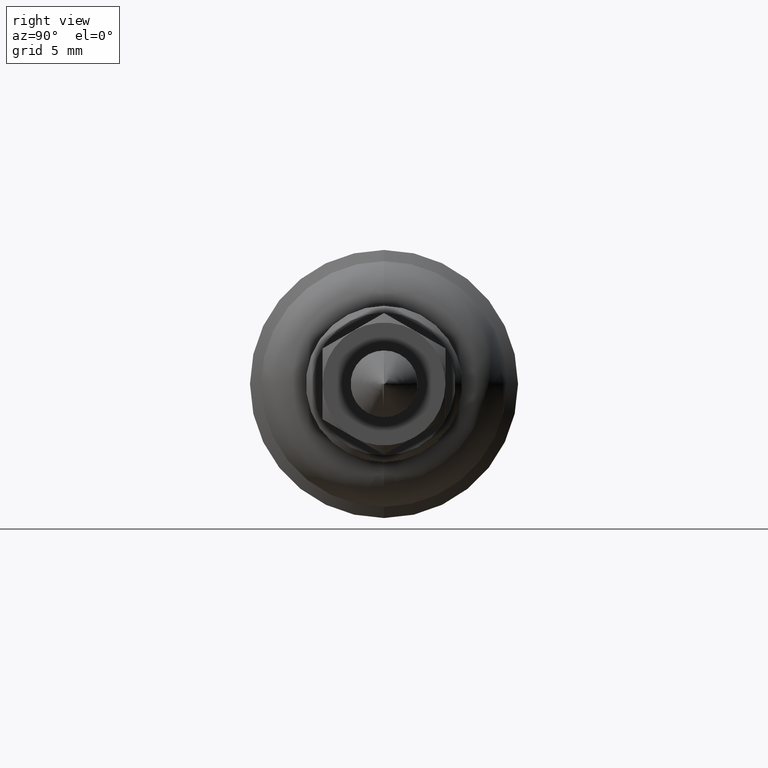
[diagram: clean part render]
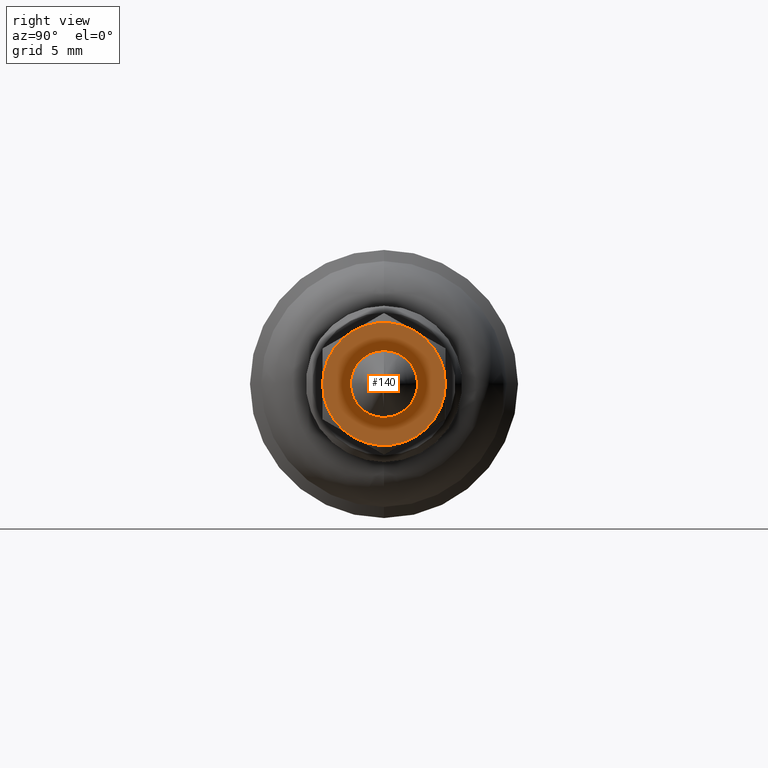
[diagram: same view with one face highlighted and labeled with its STEP entity id]
A machine part, right view. The second image highlights one B-rep face of the part: STEP entity #140.
In plain terms, the highlighted planar face has unit normal (1, 0, 0).
Its self-contained STEP definition (entity closure, byte-faithful):
#140=ADVANCED_FACE('',(#436,#437),#435,.T.);
#435=PLANE('',#843);
#436=FACE_OUTER_BOUND('',#844,.T.);
#437=FACE_BOUND('',#845,.T.);
#840=CARTESIAN_POINT('',(-3.81051177665E+00,3.30000000000E+00,2.40000000000E+00));
#841=DIRECTION('',(0.00000000000E+00,0.00000000000E+00,1.00000000000E+00));
#842=DIRECTION('',(0.00000000000E+00,-1.00000000000E+00,0.00000000000E+00));
#843=AXIS2_PLACEMENT_3D('',#840,#841,#842);
#844=EDGE_LOOP('',(#1010,#1011,#1012,#1013,#1014,#1015));
#845=EDGE_LOOP('',(#1016,#1017,#1018));
#1010=ORIENTED_EDGE('',*,*,#1122,.T.);
#1011=ORIENTED_EDGE('',*,*,#1124,.T.);
#1012=ORIENTED_EDGE('',*,*,#1127,.F.);
#1013=ORIENTED_EDGE('',*,*,#1132,.T.);
#1014=ORIENTED_EDGE('',*,*,#1133,.T.);
#1015=ORIENTED_EDGE('',*,*,#1131,.T.);
#1016=ORIENTED_EDGE('',*,*,#1134,.F.);
#1017=ORIENTED_EDGE('',*,*,#1135,.F.);
#1018=ORIENTED_EDGE('',*,*,#1136,.F.);
#1122=EDGE_CURVE('',#1462,#1469,#1476,.T.);
#1124=EDGE_CURVE('',#1469,#1482,#1490,.T.);
#1127=EDGE_CURVE('',#1502,#1482,#1510,.T.);
#1131=EDGE_CURVE('',#1523,#1462,#1536,.T.);
#1132=EDGE_CURVE('',#1502,#1542,#1543,.T.);
#1133=EDGE_CURVE('',#1542,#1523,#1549,.T.);
#1134=EDGE_CURVE('',#1555,#1556,#1557,.T.);
#1135=EDGE_CURVE('',#1563,#1555,#1564,.T.);
#1136=EDGE_CURVE('',#1556,#1563,#1570,.T.);
#1462=VERTEX_POINT('',#1892);
#1469=VERTEX_POINT('',#1897);
#1476=CIRCLE('',#1907,2.75000000000E+00);
#1482=VERTEX_POINT('',#1908);
#1490=CIRCLE('',#1919,2.75000000000E+00);
#1502=VERTEX_POINT('',#1924);
#1510=CIRCLE('',#1935,2.75000000000E+00);
#1523=VERTEX_POINT('',#1943);
#1536=CIRCLE('',#1959,2.75000000000E+00);
#1542=VERTEX_POINT('',#1960);
#1543=CIRCLE('',#1964,2.75000000000E+00);
#1549=CIRCLE('',#1968,2.75000000000E+00);
#1555=VERTEX_POINT('',#1969);
#1556=VERTEX_POINT('',#1970);
#1557=CIRCLE('',#1974,1.50000000000E+00);
#1563=VERTEX_POINT('',#1975);
#1564=CIRCLE('',#1979,1.50000000000E+00);
#1570=CIRCLE('',#1983,1.50000000000E+00);
#1892=CARTESIAN_POINT('',(2.38156986041E+00,-1.37500000000E+00,2.40000000000E+00));
#1897=CARTESIAN_POINT('',(2.38156986041E+00,1.37500000000E+00,2.40000000000E+00));
#1904=CARTESIAN_POINT('',(0.00000000000E+00,0.00000000000E+00,2.40000000000E+00));
#1905=DIRECTION('',(0.00000000000E+00,0.00000000000E+00,1.00000000000E+00));
#1906=DIRECTION('',(-1.00000000000E+00,-0.00000000000E+00,0.00000000000E+00));
#1907=AXIS2_PLACEMENT_3D('',#1904,#1905,#1906);
#1908=CARTESIAN_POINT('',(0.00000000000E+00,2.75000000000E+00,2.40000000000E+00));
#1916=CARTESIAN_POINT('',(0.00000000000E+00,0.00000000000E+00,2.40000000000E+00));
#1917=DIRECTION('',(0.00000000000E+00,0.00000000000E+00,1.00000000000E+00));
#1918=DIRECTION('',(-1.00000000000E+00,-0.00000000000E+00,0.00000000000E+00));
#1919=AXIS2_PLACEMENT_3D('',#1916,#1917,#1918);
#1924=CARTESIAN_POINT('',(-2.38156986041E+00,1.37500000000E+00,2.40000000000E+00));
#1932=CARTESIAN_POINT('',(0.00000000000E+00,0.00000000000E+00,2.40000000000E+00));
#1933=DIRECTION('',(0.00000000000E+00,0.00000000000E+00,-1.00000000000E+00));
#1934=DIRECTION('',(1.00000000000E+00,-0.00000000000E+00,-0.00000000000E+00));
#1935=AXIS2_PLACEMENT_3D('',#1932,#1933,#1934);
#1943=CARTESIAN_POINT('',(0.00000000000E+00,-2.75000000000E+00,2.40000000000E+00));
#1956=CARTESIAN_POINT('',(0.00000000000E+00,0.00000000000E+00,2.40000000000E+00));
#1957=DIRECTION('',(0.00000000000E+00,0.00000000000E+00,1.00000000000E+00));
#1958=DIRECTION('',(-1.00000000000E+00,-0.00000000000E+00,0.00000000000E+00));
#1959=AXIS2_PLACEMENT_3D('',#1956,#1957,#1958);
#1960=CARTESIAN_POINT('',(-2.38156986041E+00,-1.37500000000E+00,2.40000000000E+00));
#1961=CARTESIAN_POINT('',(0.00000000000E+00,0.00000000000E+00,2.40000000000E+00));
#1962=DIRECTION('',(0.00000000000E+00,0.00000000000E+00,1.00000000000E+00));
#1963=DIRECTION('',(-8.66025403784E-01,5.00000000000E-01,0.00000000000E+00));
#1964=AXIS2_PLACEMENT_3D('',#1961,#1962,#1963);
#1965=CARTESIAN_POINT('',(0.00000000000E+00,0.00000000000E+00,2.40000000000E+00));
#1966=DIRECTION('',(0.00000000000E+00,0.00000000000E+00,1.00000000000E+00));
#1967=DIRECTION('',(-1.00000000000E+00,-0.00000000000E+00,0.00000000000E+00));
#1968=AXIS2_PLACEMENT_3D('',#1965,#1966,#1967);
#1969=CARTESIAN_POINT('',(-1.49999999998E+00,-8.18172202416E-06,2.40000000000E+00));
#1970=CARTESIAN_POINT('',(0.00000000000E+00,-1.50000000000E+00,2.40000000000E+00));
#1971=CARTESIAN_POINT('',(0.00000000000E+00,0.00000000000E+00,2.40000000000E+00));
#1972=DIRECTION('',(0.00000000000E+00,0.00000000000E+00,1.00000000000E+00));
#1973=DIRECTION('',(-1.22460635382E-16,-1.00000000000E+00,0.00000000000E+00));
#1974=AXIS2_PLACEMENT_3D('',#1971,#1972,#1973);
#1975=CARTESIAN_POINT('',(1.49999999192E+00,1.55697070634E-04,2.40000000000E+00));
#1976=CARTESIAN_POINT('',(0.00000000000E+00,0.00000000000E+00,2.40000000000E+00));
#1977=DIRECTION('',(0.00000000000E+00,0.00000000000E+00,1.00000000000E+00));
#1978=DIRECTION('',(-1.22460635382E-16,-1.00000000000E+00,0.00000000000E+00));
#1979=AXIS2_PLACEMENT_3D('',#1976,#1977,#1978);
#1980=CARTESIAN_POINT('',(0.00000000000E+00,0.00000000000E+00,2.40000000000E+00));
#1981=DIRECTION('',(0.00000000000E+00,0.00000000000E+00,1.00000000000E+00));
#1982=DIRECTION('',(-1.22460635382E-16,-1.00000000000E+00,0.00000000000E+00));
#1983=AXIS2_PLACEMENT_3D('',#1980,#1981,#1982);